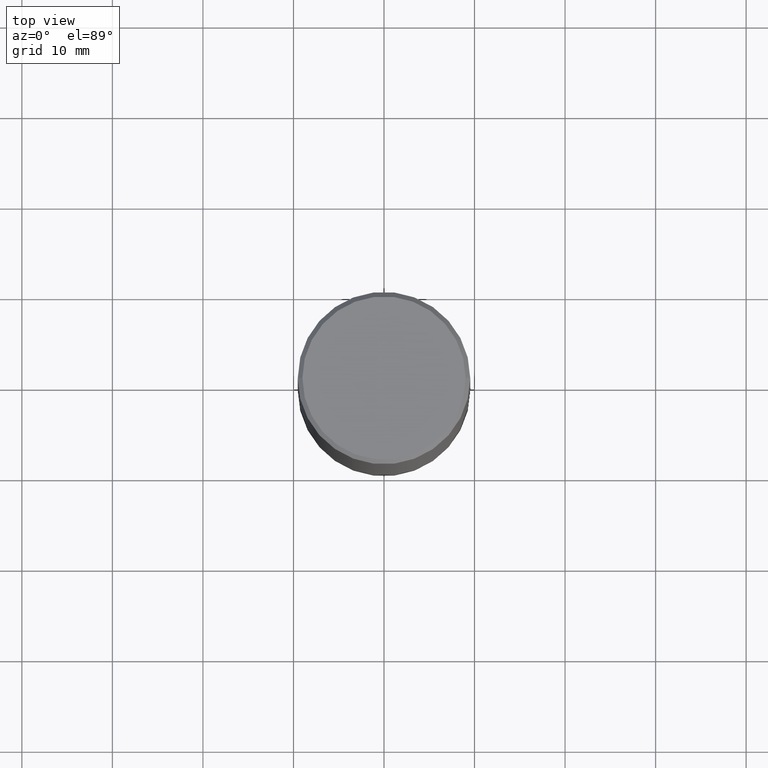
[diagram: clean part render]
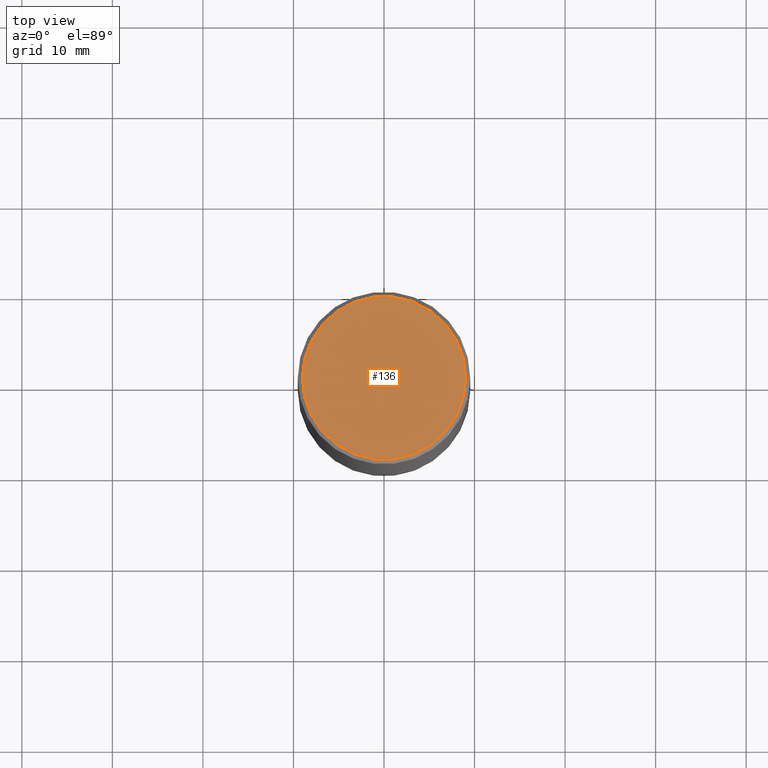
[diagram: same view with one face highlighted and labeled with its STEP entity id]
A machine part, top view. The second image highlights one B-rep face of the part: STEP entity #136.
In plain terms, the highlighted planar face has unit normal (0, -0, -1).
Its self-contained STEP definition (entity closure, byte-faithful):
#5 = AXIS2_PLACEMENT_3D ( 'NONE', #379, #39, #212 ) ;
#10 = AXIS2_PLACEMENT_3D ( 'NONE', #162, #55, #317 ) ;
#14 = CIRCLE ( 'NONE', #5, 0.3549999999999998157 ) ;
#20 = EDGE_CURVE ( 'NONE', #313, #123, #14, .T. ) ;
#39 = DIRECTION ( 'NONE',  ( -2.445468806185136597E-29, 3.491481338843145583E-15, 1.000000000000000000 ) ) ;
#55 = DIRECTION ( 'NONE',  ( 2.438088387897960049E-29, -3.491481338843145188E-15, -1.000000000000000000 ) ) ;
#71 = EDGE_CURVE ( 'NONE', #123, #313, #355, .T. ) ;
#105 = AXIS2_PLACEMENT_3D ( 'NONE', #357, #140, #273 ) ;
#123 = VERTEX_POINT ( 'NONE', #193 ) ;
#125 = CARTESIAN_POINT ( 'NONE',  ( 0.3549999999999998157, -2.538996582575039076E-15, 4.268512490117958041E-18 ) ) ;
#136 = ADVANCED_FACE ( 'NONE', ( #259 ), #190, .F. ) ;
#140 = DIRECTION ( 'NONE',  ( -2.445468806185136597E-29, 3.491481338843145583E-15, 1.000000000000000000 ) ) ;
#162 = CARTESIAN_POINT ( 'NONE',  ( 2.478951750578623420E-15, 0.3549999999999998157, -1.237341619044265835E-15 ) ) ;
#190 = PLANE ( 'NONE',  #10 ) ;
#193 = CARTESIAN_POINT ( 'NONE',  ( -0.3549999999999998157, 2.513866563967054675E-15, 4.268512490082953109E-18 ) ) ;
#211 = EDGE_LOOP ( 'NONE', ( #374, #254 ) ) ;
#212 = DIRECTION ( 'NONE',  ( 1.000000000000000000, -6.982962677686266711E-15, 4.876231632511990425E-29 ) ) ;
#254 = ORIENTED_EDGE ( 'NONE', *, *, #20, .T. ) ;
#259 = FACE_OUTER_BOUND ( 'NONE', #211, .T. ) ;
#273 = DIRECTION ( 'NONE',  ( 1.000000000000000000, -6.982962677686266711E-15, 4.876231632511990425E-29 ) ) ;
#313 = VERTEX_POINT ( 'NONE', #125 ) ;
#317 = DIRECTION ( 'NONE',  ( -1.000000000000000000, 6.982962677686265922E-15, -4.876176775795935793E-29 ) ) ;
#355 = CIRCLE ( 'NONE', #105, 0.3549999999999998157 ) ;
#357 = CARTESIAN_POINT ( 'NONE',  ( -1.043851414335219820E-46, 1.490343170380447200E-32, 4.268512490100411279E-18 ) ) ;
#374 = ORIENTED_EDGE ( 'NONE', *, *, #71, .T. ) ;
#379 = CARTESIAN_POINT ( 'NONE',  ( -1.043851414335219820E-46, 1.490343170380447200E-32, 4.268512490100411279E-18 ) ) ;